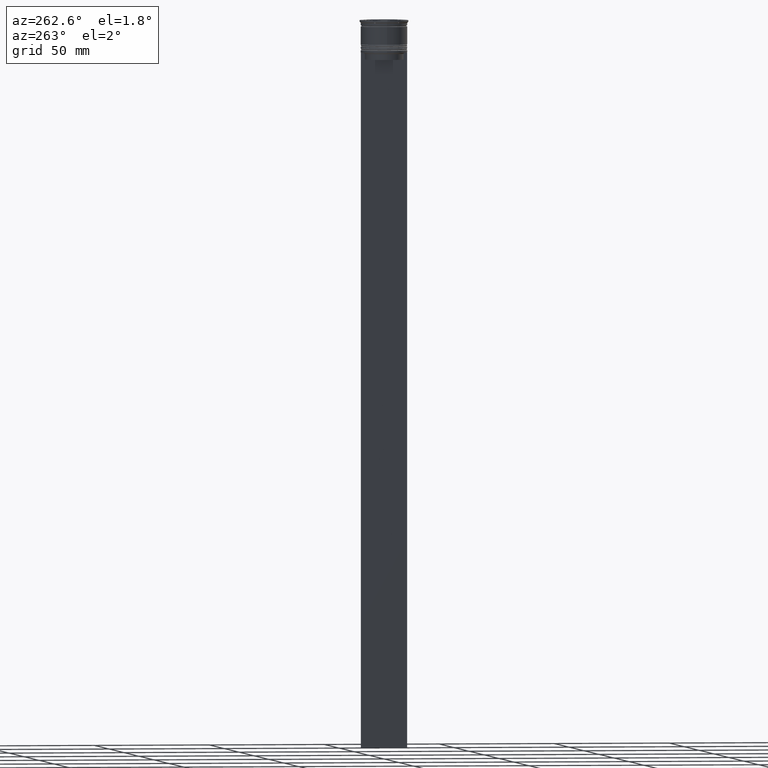
[diagram: clean part render]
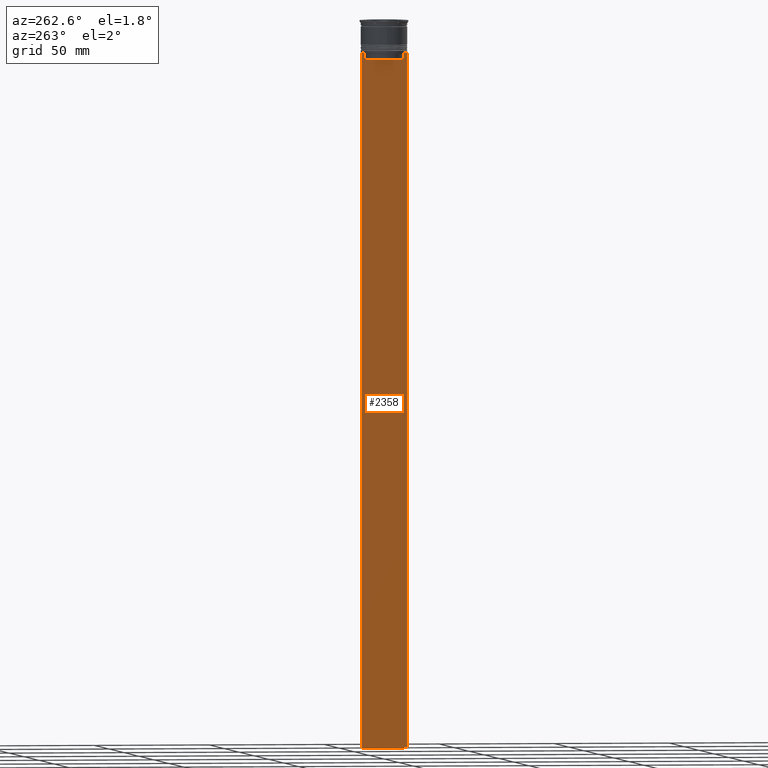
[diagram: same view with one face highlighted and labeled with its STEP entity id]
A machine part, auxiliary view. The second image highlights one B-rep face of the part: STEP entity #2358.
In plain terms, the highlighted planar face has unit normal (-1, 0, 0).
Its self-contained STEP definition (entity closure, byte-faithful):
#28 = VERTEX_POINT ( 'NONE', #1564 ) ;
#39 = DIRECTION ( 'NONE',  ( 0.000000000000000000, 0.000000000000000000, -1.000000000000000000 ) ) ;
#41 = VERTEX_POINT ( 'NONE', #360 ) ;
#76 = CARTESIAN_POINT ( 'NONE',  ( -0.5000000000000000000, -10.00000000000000178, -14.00000000000000178 ) ) ;
#83 = DIRECTION ( 'NONE',  ( 0.000000000000000000, 0.000000000000000000, -1.000000000000000000 ) ) ;
#98 = VECTOR ( 'NONE', #254, 1000.000000000000000 ) ;
#106 = VECTOR ( 'NONE', #2655, 1000.000000000000000 ) ;
#137 = ORIENTED_EDGE ( 'NONE', *, *, #798, .F. ) ;
#215 = VERTEX_POINT ( 'NONE', #513 ) ;
#249 = CARTESIAN_POINT ( 'NONE',  ( -0.5000000000000000000, -10.00000000000000178, -14.00000000000000178 ) ) ;
#253 = EDGE_CURVE ( 'NONE', #28, #1173, #1758, .T. ) ;
#254 = DIRECTION ( 'NONE',  ( 0.000000000000000000, 0.000000000000000000, -1.000000000000000000 ) ) ;
#272 = CARTESIAN_POINT ( 'NONE',  ( -0.5000000000000000000, -10.00000000000000178, 6.024984394500783047 ) ) ;
#360 = CARTESIAN_POINT ( 'NONE',  ( -0.5000000000000000000, -10.00000000000000178, -14.00000000000000178 ) ) ;
#368 = ORIENTED_EDGE ( 'NONE', *, *, #1802, .F. ) ;
#387 = VERTEX_POINT ( 'NONE', #2397 ) ;
#409 = VERTEX_POINT ( 'NONE', #2527 ) ;
#418 = ORIENTED_EDGE ( 'NONE', *, *, #1856, .F. ) ;
#439 = LINE ( 'NONE', #249, #480 ) ;
#459 = CARTESIAN_POINT ( 'NONE',  ( -0.5000000000000000000, 8.400000000000003908, -17.00000000000000000 ) ) ;
#460 = PLANE ( 'NONE',  #610 ) ;
#480 = VECTOR ( 'NONE', #1265, 1000.000000000000000 ) ;
#488 = DIRECTION ( 'NONE',  ( -1.000000000000000000, 0.000000000000000000, 0.000000000000000000 ) ) ;
#498 = CARTESIAN_POINT ( 'NONE',  ( -0.5000000000000000000, -8.885943956609230199, -14.00000000000000178 ) ) ;
#513 = CARTESIAN_POINT ( 'NONE',  ( -0.5000000000000000000, 9.887365675446622149, -14.00000000000000178 ) ) ;
#553 = CARTESIAN_POINT ( 'NONE',  ( -0.5000000000000000000, -10.00000000000000178, -14.00000000000000178 ) ) ;
#560 = EDGE_LOOP ( 'NONE', ( #2456, #578, #1227, #2492, #137, #757, #368, #570, #1690, #418, #853, #2420 ) ) ;
#570 = ORIENTED_EDGE ( 'NONE', *, *, #253, .F. ) ;
#575 = CARTESIAN_POINT ( 'NONE',  ( -0.5000000000000000000, -10.00000000000000178, -314.0000000000000000 ) ) ;
#578 = ORIENTED_EDGE ( 'NONE', *, *, #2483, .F. ) ;
#586 = EDGE_CURVE ( 'NONE', #41, #1505, #2561, .T. ) ;
#610 = AXIS2_PLACEMENT_3D ( 'NONE', #1066, #488, #1923 ) ;
#619 = CARTESIAN_POINT ( 'NONE',  ( -0.5000000000000000000, 8.385105843100616241, 0.000000000000000000 ) ) ;
#622 = CARTESIAN_POINT ( 'NONE',  ( -0.5000000000000000000, -10.00000000000000178, -14.00000000000000178 ) ) ;
#624 = CARTESIAN_POINT ( 'NONE',  ( -0.5000000000000000000, -8.385105843100616241, -14.50000000000000000 ) ) ;
#644 = VECTOR ( 'NONE', #1011, 1000.000000000000000 ) ;
#689 = CARTESIAN_POINT ( 'NONE',  ( -0.5000000000000000000, -8.719005764482790966, -14.16667454151159689 ) ) ;
#713 = DIRECTION ( 'NONE',  ( 0.000000000000000000, -1.000000000000000000, 0.000000000000000000 ) ) ;
#715 = FACE_OUTER_BOUND ( 'NONE', #560, .T. ) ;
#735 = VECTOR ( 'NONE', #1410, 1000.000000000000000 ) ;
#757 = ORIENTED_EDGE ( 'NONE', *, *, #586, .F. ) ;
#798 = EDGE_CURVE ( 'NONE', #1505, #1187, #2612, .T. ) ;
#853 = ORIENTED_EDGE ( 'NONE', *, *, #1122, .F. ) ;
#927 = VERTEX_POINT ( 'NONE', #1424 ) ;
#1011 = DIRECTION ( 'NONE',  ( 0.000000000000000000, -1.000000000000000000, 0.000000000000000000 ) ) ;
#1031 = CARTESIAN_POINT ( 'NONE',  ( -0.5000000000000000000, 8.719005771582351016, -14.16667453442324742 ) ) ;
#1061 = LINE ( 'NONE', #622, #1510 ) ;
#1066 = CARTESIAN_POINT ( 'NONE',  ( -0.5000000000000000000, -10.00000000000000178, 6.024984394500783047 ) ) ;
#1077 = VECTOR ( 'NONE', #39, 1000.000000000000000 ) ;
#1091 = CARTESIAN_POINT ( 'NONE',  ( -0.5000000000000000000, 9.999999999999998224, 6.024984394500783047 ) ) ;
#1122 = EDGE_CURVE ( 'NONE', #1584, #1884, #1922, .T. ) ;
#1173 = VERTEX_POINT ( 'NONE', #2063 ) ;
#1187 = VERTEX_POINT ( 'NONE', #2007 ) ;
#1216 = CARTESIAN_POINT ( 'NONE',  ( -0.5000000000000000000, 8.385105843100616241, -14.50000000000000000 ) ) ;
#1227 = ORIENTED_EDGE ( 'NONE', *, *, #1417, .F. ) ;
#1265 = DIRECTION ( 'NONE',  ( 0.000000000000000000, -1.000000000000000000, 0.000000000000000000 ) ) ;
#1346 = VERTEX_POINT ( 'NONE', #624 ) ;
#1361 = LINE ( 'NONE', #553, #106 ) ;
#1374 = B_SPLINE_CURVE_WITH_KNOTS ( 'NONE', 3,
 ( #1532, #2318, #689, #498 ),
 .UNSPECIFIED., .F., .F.,
 ( 4, 4 ),
 ( 0.03898465126933132324, 0.03969388910599660342 ),
 .UNSPECIFIED. ) ;
#1402 = CARTESIAN_POINT ( 'NONE',  ( -0.5000000000000000000, 8.385105843100616241, -17.00000000000000000 ) ) ;
#1410 = DIRECTION ( 'NONE',  ( 0.000000000000000000, 1.000000000000000000, 0.000000000000000000 ) ) ;
#1417 = EDGE_CURVE ( 'NONE', #409, #215, #439, .T. ) ;
#1424 = CARTESIAN_POINT ( 'NONE',  ( -0.5000000000000000000, 8.885943956609230199, -14.00000000000000178 ) ) ;
#1476 = CARTESIAN_POINT ( 'NONE',  ( -0.5000000000000000000, 8.552060201981381837, -14.33334167021640226 ) ) ;
#1505 = VERTEX_POINT ( 'NONE', #2569 ) ;
#1507 = EDGE_CURVE ( 'NONE', #409, #1187, #1528, .T. ) ;
#1510 = VECTOR ( 'NONE', #2119, 1000.000000000000000 ) ;
#1528 = LINE ( 'NONE', #1091, #2299 ) ;
#1532 = CARTESIAN_POINT ( 'NONE',  ( -0.5000000000000000000, -8.385105843100616241, -14.50000000000000000 ) ) ;
#1564 = CARTESIAN_POINT ( 'NONE',  ( -0.5000000000000000000, -8.885943956609230199, -14.00000000000000178 ) ) ;
#1584 = VERTEX_POINT ( 'NONE', #1402 ) ;
#1598 = VECTOR ( 'NONE', #713, 1000.000000000000000 ) ;
#1690 = ORIENTED_EDGE ( 'NONE', *, *, #2327, .F. ) ;
#1699 = VECTOR ( 'NONE', #2577, 1000.000000000000000 ) ;
#1718 = CARTESIAN_POINT ( 'NONE',  ( -0.5000000000000000000, -8.385105843100616241, 0.000000000000000000 ) ) ;
#1758 = LINE ( 'NONE', #76, #644 ) ;
#1802 = EDGE_CURVE ( 'NONE', #1173, #41, #1061, .T. ) ;
#1856 = EDGE_CURVE ( 'NONE', #1884, #1346, #1938, .T. ) ;
#1875 = LINE ( 'NONE', #619, #1077 ) ;
#1884 = VERTEX_POINT ( 'NONE', #2380 ) ;
#1902 = CARTESIAN_POINT ( 'NONE',  ( -0.5000000000000000000, 8.885943956609230199, -14.00000000000000178 ) ) ;
#1922 = LINE ( 'NONE', #459, #1598 ) ;
#1923 = DIRECTION ( 'NONE',  ( 0.000000000000000000, 0.000000000000000000, 1.000000000000000000 ) ) ;
#1938 = LINE ( 'NONE', #1718, #1699 ) ;
#2007 = CARTESIAN_POINT ( 'NONE',  ( -0.5000000000000000000, 9.999999999999998224, -314.0000000000000000 ) ) ;
#2063 = CARTESIAN_POINT ( 'NONE',  ( -0.5000000000000000000, -9.887365675446622149, -14.00000000000000178 ) ) ;
#2119 = DIRECTION ( 'NONE',  ( 0.000000000000000000, -1.000000000000000000, 0.000000000000000000 ) ) ;
#2134 = EDGE_CURVE ( 'NONE', #927, #387, #2319, .T. ) ;
#2179 = EDGE_CURVE ( 'NONE', #387, #1584, #1875, .T. ) ;
#2299 = VECTOR ( 'NONE', #83, 1000.000000000000000 ) ;
#2318 = CARTESIAN_POINT ( 'NONE',  ( -0.5000000000000000000, -8.552060194457769882, -14.33334167772667200 ) ) ;
#2319 = B_SPLINE_CURVE_WITH_KNOTS ( 'NONE', 3,
 ( #1902, #1031, #1476, #1216 ),
 .UNSPECIFIED., .F., .F.,
 ( 4, 4 ),
 ( 0.01511546479386908018, 0.01582316445439079997 ),
 .UNSPECIFIED. ) ;
#2327 = EDGE_CURVE ( 'NONE', #1346, #28, #1374, .T. ) ;
#2358 = ADVANCED_FACE ( 'NONE', ( #715 ), #460, .T. ) ;
#2380 = CARTESIAN_POINT ( 'NONE',  ( -0.5000000000000000000, -8.385105843100616241, -17.00000000000000000 ) ) ;
#2397 = CARTESIAN_POINT ( 'NONE',  ( -0.5000000000000000000, 8.385105843100616241, -14.50000000000000000 ) ) ;
#2420 = ORIENTED_EDGE ( 'NONE', *, *, #2179, .F. ) ;
#2456 = ORIENTED_EDGE ( 'NONE', *, *, #2134, .F. ) ;
#2483 = EDGE_CURVE ( 'NONE', #215, #927, #1361, .T. ) ;
#2492 = ORIENTED_EDGE ( 'NONE', *, *, #1507, .T. ) ;
#2527 = CARTESIAN_POINT ( 'NONE',  ( -0.5000000000000000000, 9.999999999999994671, -14.00000000000000178 ) ) ;
#2561 = LINE ( 'NONE', #272, #98 ) ;
#2569 = CARTESIAN_POINT ( 'NONE',  ( -0.5000000000000000000, -10.00000000000000178, -314.0000000000000000 ) ) ;
#2577 = DIRECTION ( 'NONE',  ( -0.000000000000000000, -0.000000000000000000, 1.000000000000000000 ) ) ;
#2612 = LINE ( 'NONE', #575, #735 ) ;
#2655 = DIRECTION ( 'NONE',  ( 0.000000000000000000, -1.000000000000000000, 0.000000000000000000 ) ) ;